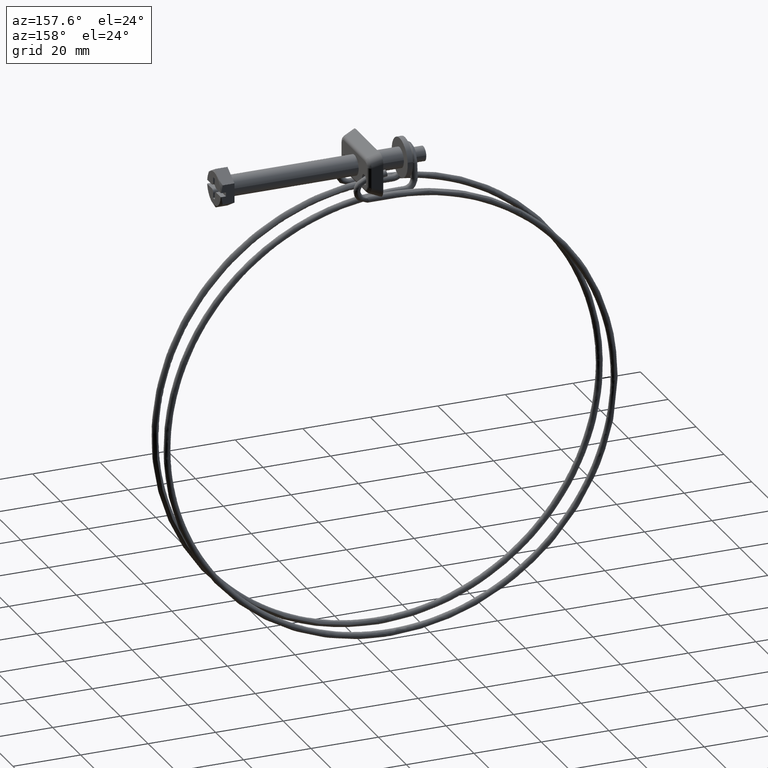
[diagram: clean part render]
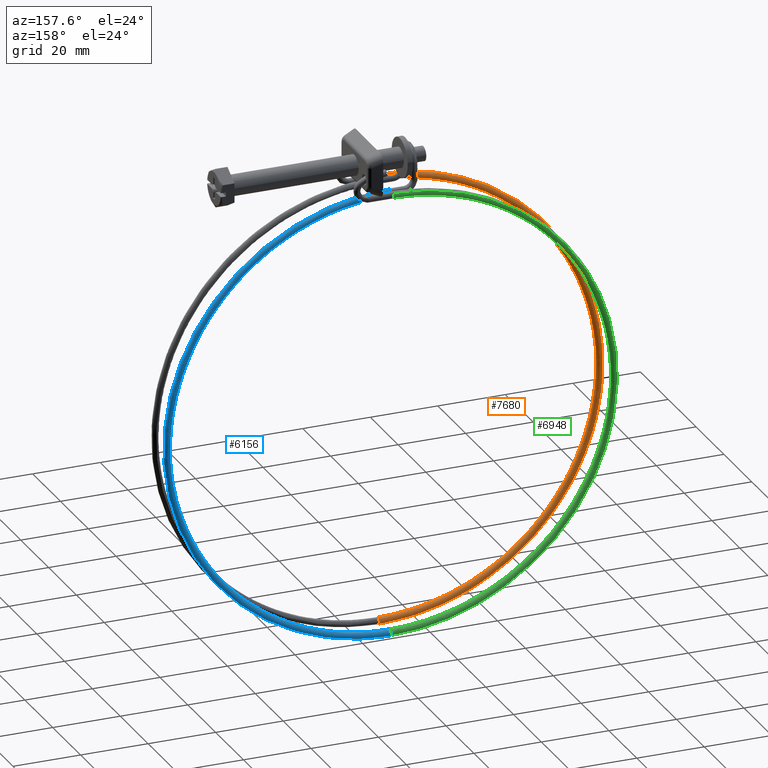
[diagram: same view with three faces highlighted in distinct colors, each labeled with its STEP entity id]
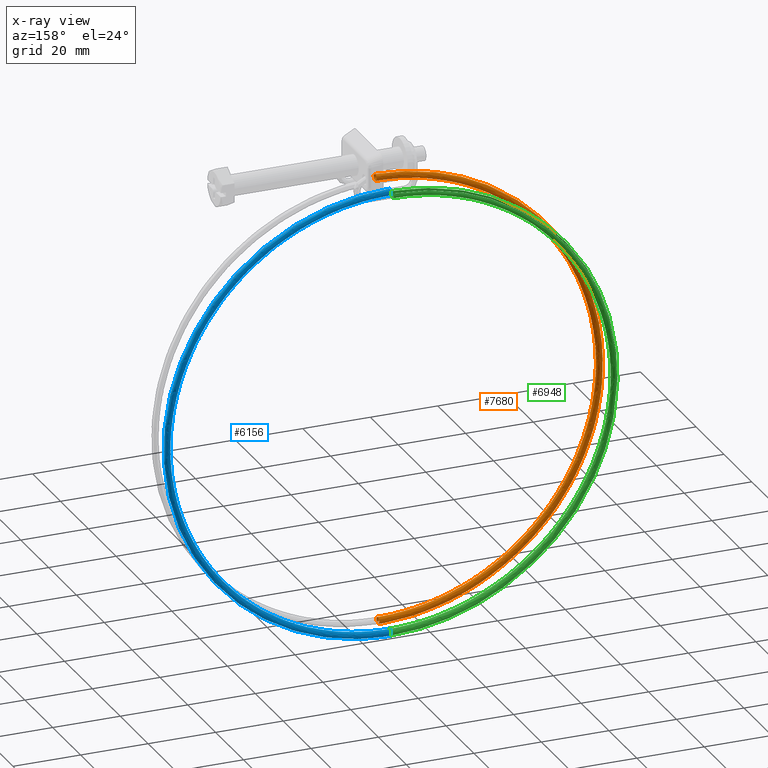
[diagram: x-ray of the same camera — body ghosted, the three highlighted faces saturated]
A machine part, auxiliary view with three faces highlighted in distinct colors.
The next image is the same camera in x-ray (body ghosted, the three faces saturated) — at least one of them is partly hidden behind the body in this view.
Their STEP definitions:

[orange] entity #7680 — the highlighted face is a freeform B-spline surface patch.
#5893=CARTESIAN_POINT('',(-46.300000000001297,-5.987361141063021,-6.904041933983246));
#5894=VERTEX_POINT('',#5893);
#5900=CARTESIAN_POINT('',(-46.300000000001297,-6.340604060138909,-6.850464702398905));
#5901=VERTEX_POINT('',#5900);
#5902=CARTESIAN_POINT('',(-46.300000000001297,-5.987361141063021,-6.904041933983246));
#5903=CARTESIAN_POINT('',(-46.300000000001297,-6.100711476459462,-6.865422116464831));
#5904=CARTESIAN_POINT('',(-46.300000000001297,-6.220833397246240,-6.846666851713740));
#5905=CARTESIAN_POINT('',(-46.300000000001297,-6.340604060138909,-6.850464702398905));
#5906=B_SPLINE_CURVE_WITH_KNOTS('',3,(#5902,#5903,#5904,#5905),.UNSPECIFIED.,.F.,.U.,(4,4),(0.942811831421911,1.0),.UNSPECIFIED.);
#5907=EDGE_CURVE('',#5894,#5901,#5906,.T.);
#5909=CARTESIAN_POINT('',(-46.300000000001297,-7.059608237888009,-7.187977989830042));
#5910=VERTEX_POINT('',#5909);
#5920=CARTESIAN_POINT('',(-46.300000000001297,-6.279704477932261,-8.849537297600755));
#5921=VERTEX_POINT('',#5920);
#5922=CARTESIAN_POINT('',(-46.300000000001297,-7.059608237887938,-7.187977989829961));
#5923=CARTESIAN_POINT('',(-46.300000000001297,-7.225673431966957,-7.376489701237635));
#5924=CARTESIAN_POINT('',(-46.300000000001297,-7.317343433839193,-7.629239919939925));
#5925=CARTESIAN_POINT('',(-46.300000000001297,-7.301718829967050,-8.142128781898130));
#5926=CARTESIAN_POINT('',(-46.300000000001297,-7.186073060171610,-8.398913735128859));
#5927=CARTESIAN_POINT('',(-46.300000000001297,-6.804730758501230,-8.757708560572009));
#5928=CARTESIAN_POINT('',(-46.300000000001297,-6.541382468727210,-8.857509034270210));
#5929=CARTESIAN_POINT('',(-46.300000000001297,-6.279704477932261,-8.849537297600755));
#5930=B_SPLINE_CURVE_WITH_KNOTS('',3,(#5922,#5923,#5924,#5925,#5926,#5927,#5928,#5929),.UNSPECIFIED.,.F.,.U.,(4,2,2,4),(0.129999999999966,0.250000000000000,0.375000000000000,0.500000000000000),.UNSPECIFIED.);
#5931=EDGE_CURVE('',#5910,#5921,#5930,.T.);
#5933=CARTESIAN_POINT('',(-46.300000000001290,-5.310662282386918,-7.880626537365123));
#5934=VERTEX_POINT('',#5933);
#5935=CARTESIAN_POINT('',(-46.300000000001297,-6.279704477932261,-8.849537297600755));
#5936=CARTESIAN_POINT('',(-46.300000000001297,-6.018021073740251,-8.841565739546454));
#5937=CARTESIAN_POINT('',(-46.300000000001297,-5.761228643913634,-8.725920216441475));
#5938=CARTESIAN_POINT('',(-46.300000000001290,-5.416377362093805,-8.359413350748357));
#5939=CARTESIAN_POINT('',(-46.300000000001290,-5.318623906230278,-8.121769434405914));
#5940=CARTESIAN_POINT('',(-46.300000000001290,-5.310662282386918,-7.880626537365123));
#5941=B_SPLINE_CURVE_WITH_KNOTS('',3,(#5935,#5936,#5937,#5938,#5939,#5940),.UNSPECIFIED.,.F.,.U.,(4,2,4),(0.500000000000000,0.625000000000000,0.740274508793305),.UNSPECIFIED.);
#5942=EDGE_CURVE('',#5921,#5934,#5941,.T.);
#6013=CARTESIAN_POINT('',(-46.300000000001290,-5.310662282386918,-7.880626537365123));
#6014=CARTESIAN_POINT('',(-46.300000000001290,-5.309989380878576,-7.860275451015038));
#6015=CARTESIAN_POINT('',(-46.300000000001290,-5.309955565105328,-7.839899310971513));
#6016=CARTESIAN_POINT('',(-46.300000000001290,-5.318524118460217,-7.557770409297187));
#6017=CARTESIAN_POINT('',(-46.300000000001290,-5.434142490514343,-7.300878589135087));
#6018=CARTESIAN_POINT('',(-46.300000000001297,-5.728212641389556,-7.024006607197404));
#6019=CARTESIAN_POINT('',(-46.300000000001297,-5.853026589946310,-6.950059000476596));
#6020=CARTESIAN_POINT('',(-46.300000000001297,-5.987361141063021,-6.904041933983246));
#6021=B_SPLINE_CURVE_WITH_KNOTS('',3,(#6013,#6014,#6015,#6016,#6017,#6018,#6019,#6020),.UNSPECIFIED.,.F.,.U.,(4,2,2,4),(0.740274508793305,0.750000000000000,0.875000000000000,0.942811831421911),.UNSPECIFIED.);
#6022=EDGE_CURVE('',#5934,#5894,#6021,.T.);
#6614=CARTESIAN_POINT('',(-46.299999999998718,-3.300325003128281,-139.875130902443090));
#6615=VERTEX_POINT('',#6614);
#6631=CARTESIAN_POINT('',(-46.299999999998832,-4.300002000000002,-138.850000999999910));
#6632=VERTEX_POINT('',#6631);
#6633=CARTESIAN_POINT('',(-46.299999999998832,-4.300002000000002,-138.850000999999910));
#6634=CARTESIAN_POINT('',(-46.299999999998811,-4.038201694071937,-138.850001024100610));
#6635=CARTESIAN_POINT('',(-46.299999999998811,-3.778013123046963,-138.957774154617110));
#6636=CARTESIAN_POINT('',(-46.299999999998761,-3.407770248270867,-139.328014468498910));
#6637=CARTESIAN_POINT('',(-46.299999999998739,-3.299995838206623,-139.588201773946710));
#6638=CARTESIAN_POINT('',(-46.299999999998718,-3.299994866560924,-139.858380212582090));
#6639=CARTESIAN_POINT('',(-46.299999999998718,-3.300105234542940,-139.866757587316410));
#6640=CARTESIAN_POINT('',(-46.299999999998718,-3.300325003128281,-139.875130902443090));
#6641=B_SPLINE_CURVE_WITH_KNOTS('',3,(#6633,#6634,#6635,#6636,#6637,#6638,#6639,#6640),.UNSPECIFIED.,.F.,.U.,(4,2,2,4),(0.500000000000000,0.625000000000000,0.750000000000000,0.754000689899060),.UNSPECIFIED.);
#6642=EDGE_CURVE('',#6632,#6615,#6641,.T.);
#6644=CARTESIAN_POINT('',(-46.299999999998761,-5.028949982883797,-140.534537745304790));
#6645=VERTEX_POINT('',#6644);
#6646=CARTESIAN_POINT('',(-46.299999999998818,-5.028949982883710,-140.534537745304790));
#6647=CARTESIAN_POINT('',(-46.299999999998818,-5.200678314366739,-140.351170097699310));
#6648=CARTESIAN_POINT('',(-46.299999999998811,-5.300001999999999,-140.101328412287190));
#6649=CARTESIAN_POINT('',(-46.299999999998832,-5.300002000000001,-139.588201612200810));
#6650=CARTESIAN_POINT('',(-46.299999999998832,-5.192228903609815,-139.328014341236700));
#6651=CARTESIAN_POINT('',(-46.299999999998832,-4.821988658763284,-138.957774096390100));
#6652=CARTESIAN_POINT('',(-46.299999999998839,-4.561801387799152,-138.850000999999910));
#6653=CARTESIAN_POINT('',(-46.299999999998832,-4.300002000000002,-138.850000999999910));
#6654=B_SPLINE_CURVE_WITH_KNOTS('',3,(#6646,#6647,#6648,#6649,#6650,#6651,#6652,#6653),.UNSPECIFIED.,.F.,.U.,(4,2,2,4),(0.129999999999962,0.250000000000000,0.375000000000000,0.500000000000000),.UNSPECIFIED.);
#6655=EDGE_CURVE('',#6645,#6632,#6654,.T.);
#6657=CARTESIAN_POINT('',(-46.300000000306440,-4.312567047721670,-140.849843094641610));
#6658=VERTEX_POINT('',#6657);
#6723=CARTESIAN_POINT('',(-46.299999999998718,-3.300325003128281,-139.875130902443090));
#6724=CARTESIAN_POINT('',(-46.300000000038743,-3.308607526460920,-140.128357981073290));
#6725=CARTESIAN_POINT('',(-46.300000000093974,-3.417584145978102,-140.377863779682290));
#6726=CARTESIAN_POINT('',(-46.300000000207497,-3.786538112270976,-140.742120829314810));
#6727=CARTESIAN_POINT('',(-46.300000000265143,-4.049080067939266,-140.849864315874410));
#6728=CARTESIAN_POINT('',(-46.300000000306440,-4.312567047721670,-140.849843094641610));
#6729=B_SPLINE_CURVE_WITH_KNOTS('',3,(#6723,#6724,#6725,#6726,#6727,#6728),.UNSPECIFIED.,.F.,.U.,(4,2,4),(0.754000689899063,0.875000000000000,1.0),.UNSPECIFIED.);
#6730=EDGE_CURVE('',#6615,#6658,#6729,.T.);
#7451=CARTESIAN_POINT('',(-45.252202371138893,-5.010231538632579,-140.554524812978200));
#7452=CARTESIAN_POINT('',(-45.255151725021982,-5.193250426231053,-140.369581834625790));
#7453=CARTESIAN_POINT('',(-45.263382723406529,-5.407578833021655,-139.848932364610700));
#7454=CARTESIAN_POINT('',(-45.275602872031193,-5.083829684594659,-139.066174413108510));
#7455=CARTESIAN_POINT('',(-45.280508573015567,-4.300038246994570,-138.741984492676610));
#7456=CARTESIAN_POINT('',(-45.275229265272742,-3.516059728204994,-139.066080283535710));
#7457=CARTESIAN_POINT('',(-45.262835694378147,-3.191958351908381,-139.850011035928500));
#7458=CARTESIAN_POINT('',(-45.250391775813391,-3.521918339958694,-140.647106807001390));
#7459=CARTESIAN_POINT('',(-45.247163360981553,-4.065177354485254,-140.860872432165510));
#7460=CARTESIAN_POINT('',(-45.247399899371672,-4.339961667100067,-140.850000999971000));
#7461=CARTESIAN_POINT('',(-45.601463405716707,-5.010251859975143,-140.553191663503900));
#7462=CARTESIAN_POINT('',(-45.603429655359022,-5.193270690371752,-140.368252437850200));
#7463=CARTESIAN_POINT('',(-45.608917025905548,-5.407598937525159,-139.847613440706990));
#7464=CARTESIAN_POINT('',(-45.617063848502973,-5.083849552094709,-139.064871037565610));
#7465=CARTESIAN_POINT('',(-45.620334338646813,-4.300058019352238,-138.740687358728310));
#7466=CARTESIAN_POINT('',(-45.616814775592722,-3.516079602954475,-139.064776432174910));
#7467=CARTESIAN_POINT('',(-45.608552337341827,-3.191978467026316,-139.848691415361800));
#7468=CARTESIAN_POINT('',(-45.600256333743822,-3.521938696420341,-140.645771353363900));
#7469=CARTESIAN_POINT('',(-45.598104042170561,-4.065197773559317,-140.859532870969100));
#7470=CARTESIAN_POINT('',(-45.598261735531047,-4.339982081585965,-140.848661739817200));
#7471=CARTESIAN_POINT('',(-54.682633188571302,-5.009175624602019,-140.623901930053990));
#7472=CARTESIAN_POINT('',(-54.659037642955148,-5.192197484467054,-140.438763665598490));
#7473=CARTESIAN_POINT('',(-54.593187661725302,-5.406534186218907,-139.917569192419310));
#7474=CARTESIAN_POINT('',(-54.495423512101567,-5.082797352959244,-139.134002096632090));
#7475=CARTESIAN_POINT('',(-54.456176715711813,-4.299010859239679,-138.809487344441810));
#7476=CARTESIAN_POINT('',(-54.498412456681123,-3.515027020163968,-139.133932691218400));
#7477=CARTESIAN_POINT('',(-54.597564026487362,-3.190913153976928,-139.918684065152690));
#7478=CARTESIAN_POINT('',(-54.697118389821533,-3.520860601360476,-140.716603797343710));
#7479=CARTESIAN_POINT('',(-54.722946490651701,-4.064116362339025,-140.930583192497810));
#7480=CARTESIAN_POINT('',(-54.721054126221347,-4.338900913312568,-140.919696100635210));
#7481=CARTESIAN_POINT('',(-63.756989904469727,-5.036666164135446,-138.818655068668110));
#7482=CARTESIAN_POINT('',(-63.707851870213908,-5.219610641642518,-138.638598341837990));
#7483=CARTESIAN_POINT('',(-63.570718417655371,-5.433731386233177,-138.131585325628210));
#7484=CARTESIAN_POINT('',(-63.367123289612053,-5.109673932200050,-137.369072729178500));
#7485=CARTESIAN_POINT('',(-63.285391319416497,-4.325758727273542,-137.053010177479110));
#7486=CARTESIAN_POINT('',(-63.373347806116143,-3.541913401651541,-137.368359637001790));
#7487=CARTESIAN_POINT('',(-63.579832254759367,-3.218124706281422,-138.131757721257000));
#7488=CARTESIAN_POINT('',(-63.787155527068052,-3.548398645500405,-138.908237413329000));
#7489=CARTESIAN_POINT('',(-63.840942886536283,-4.091739110615321,-139.116654461954510));
#7490=CARTESIAN_POINT('',(-63.837002012771563,-4.366517455534196,-139.106174907672600));
#7491=CARTESIAN_POINT('',(-79.887790249689132,-5.138412340619526,-132.137322762313490));
#7492=CARTESIAN_POINT('',(-79.793249368971829,-5.321070436617339,-131.976071754862600));
#7493=CARTESIAN_POINT('',(-79.529406551988870,-5.534391953357603,-131.521541367417710));
#7494=CARTESIAN_POINT('',(-79.137692414254730,-5.209147926002485,-130.836947086511290));
#7495=CARTESIAN_POINT('',(-78.980441263578257,-4.424756378769170,-130.552164346857210));
#7496=CARTESIAN_POINT('',(-79.149668295654934,-3.641423672578825,-130.833851796036900));
#7497=CARTESIAN_POINT('',(-79.546941445382217,-3.318838389792812,-131.518225787766990));
#7498=CARTESIAN_POINT('',(-79.945828479244994,-3.650320630324742,-132.215360358566300));
#7499=CARTESIAN_POINT('',(-80.049314596031138,-4.193974573706022,-132.403192334865110));
#7500=CARTESIAN_POINT('',(-80.041732410780583,-4.468729950807779,-132.394221000677310));
#7501=CARTESIAN_POINT('',(-94.687042206880960,-5.289014529519275,-122.247778949493100));
#7502=CARTESIAN_POINT('',(-94.550848855837970,-5.471248744010267,-122.114362827849400));
#7503=CARTESIAN_POINT('',(-94.170763149916596,-5.683387300636364,-121.737513488538500));
#7504=CARTESIAN_POINT('',(-93.606469051253853,-5.356386992011648,-121.168248345507290));
#7505=CARTESIAN_POINT('',(-93.379936772017203,-4.571290396807055,-120.929763755667000));
#7506=CARTESIAN_POINT('',(-93.623721222066436,-3.788716433392357,-121.161627096298800));
#7507=CARTESIAN_POINT('',(-94.196023501528089,-3.467912356148361,-121.729035255724100));
#7508=CARTESIAN_POINT('',(-94.770650704372486,-3.801183038215469,-122.308728832305110));
#7509=CARTESIAN_POINT('',(-94.919730350267244,-4.345300969766967,-122.466092251300490));
#7510=CARTESIAN_POINT('',(-94.908807633976423,-4.620022351542072,-122.459353276821800));
#7511=CARTESIAN_POINT('',(-104.576515559903900,-5.514383602051732,-107.448543074470610));
#7512=CARTESIAN_POINT('',(-104.412492514994500,-5.695983593862392,-107.356774242369100));
#7513=CARTESIAN_POINT('',(-103.954740250669400,-5.906352174407490,-107.096153333630800));
#7514=CARTESIAN_POINT('',(-103.275138525942590,-5.576724071444121,-106.699446686109600));
#7515=CARTESIAN_POINT('',(-103.002316733016200,-4.790572564931356,-106.530234607083400));
#7516=CARTESIAN_POINT('',(-103.295915998170200,-4.009133852422949,-106.687549803534100));
#7517=CARTESIAN_POINT('',(-103.985162292230800,-3.690994861855661,-107.079950603591000));
#7518=CARTESIAN_POINT('',(-104.677208583546600,-4.026941457252975,-107.483925869859210));
#7519=CARTESIAN_POINT('',(-104.856751103659700,-4.571753620147919,-107.595701430605300));
#7520=CARTESIAN_POINT('',(-104.843596443950500,-4.846424137218420,-107.592302571739690));
#7521=CARTESIAN_POINT('',(-111.257782684500700,-5.760018688355494,-91.318505618317914));
#7522=CARTESIAN_POINT('',(-111.074958662756300,-5.940927467304522,-91.272126431439418));
#7523=CARTESIAN_POINT('',(-110.564737004908590,-6.149367024664599,-91.138178045293387));
#7524=CARTESIAN_POINT('',(-109.807236614618300,-5.816874998203254,-90.929535709970821));
#7525=CARTESIAN_POINT('',(-109.503142897714890,-5.029573787773433,-90.835820854089818));
#7526=CARTESIAN_POINT('',(-109.830395683900090,-4.249372337945368,-90.911889134847257));
#7527=CARTESIAN_POINT('',(-110.598646142494300,-3.934137914264944,-91.113556707509943));
#7528=CARTESIAN_POINT('',(-111.370017544980900,-4.273000876083368,-91.326023910732246));
#7529=CARTESIAN_POINT('',(-111.570139946175700,-4.818569652777088,-91.388115164730110));
#7530=CARTESIAN_POINT('',(-111.555477446807500,-5.093184734530484,-91.388356558528869));
#7531=CARTESIAN_POINT('',(-114.729472738080800,-6.025869368096949,-73.860977516091310));
#7532=CARTESIAN_POINT('',(-114.536880152141290,-6.206030084850589,-73.863721080269713));
#7533=CARTESIAN_POINT('',(-113.999396578674090,-6.412381965071646,-73.866863494669118));
#7534=CARTESIAN_POINT('',(-113.201421796164300,-6.076790469510829,-73.861752964377828));
#7535=CARTESIAN_POINT('',(-112.881079891693800,-5.288244996932343,-73.849744657695325));
#7536=CARTESIAN_POINT('',(-113.225818289441510,-4.509382569366179,-73.837883808673993));
#7537=CARTESIAN_POINT('',(-114.035117532720410,-4.197291600899854,-73.833131154322473));
#7538=CARTESIAN_POINT('',(-114.847704476976700,-4.539310787910502,-73.838339568346541));
#7539=CARTESIAN_POINT('',(-115.058519720890400,-5.085698406687752,-73.846660191878570));
#7540=CARTESIAN_POINT('',(-115.043073782018200,-5.360253493798234,-73.850841233808239));
#7541=CARTESIAN_POINT('',(-111.257782684645210,-6.291720047849645,-56.403449414162701));
#7542=CARTESIAN_POINT('',(-111.074958662906500,-6.471132702403176,-56.455315729459173));
#7543=CARTESIAN_POINT('',(-110.564737005023600,-6.675396905476107,-56.595548944389542));
#7544=CARTESIAN_POINT('',(-109.807236614887700,-6.336705940824894,-56.793970218892618));
#7545=CARTESIAN_POINT('',(-109.503142897943500,-5.546916206084607,-56.863668461746343));
#7546=CARTESIAN_POINT('',(-109.830395684170800,-4.769392800784982,-56.763878482788392));
#7547=CARTESIAN_POINT('',(-110.598646142598990,-4.460445287530791,-56.552705601604082));
#7548=CARTESIAN_POINT('',(-111.370017545148900,-4.805620699734621,-56.350655226237357));
#7549=CARTESIAN_POINT('',(-111.570139946315290,-5.352827160596672,-56.305205219467901));
#7550=CARTESIAN_POINT('',(-111.555477446951900,-5.627322253066031,-56.313325909426020));
#7551=CARTESIAN_POINT('',(-104.576515559842310,-6.537355134143393,-40.273411957747683));
#7552=CARTESIAN_POINT('',(-104.412492514938900,-6.716076575842074,-40.370667918201939));
#7553=CARTESIAN_POINT('',(-103.954740250590600,-6.918411755729286,-40.637573655710277));
#7554=CARTESIAN_POINT('',(-103.275138525715900,-6.576856867582300,-41.024059242666240));
#7555=CARTESIAN_POINT('',(-103.002316732867600,-5.785917428928415,-41.169254708294098));
#7556=CARTESIAN_POINT('',(-103.295915997950500,-5.009631286309215,-40.988217813855357));
#7557=CARTESIAN_POINT('',(-103.985162292157000,-4.703588339941887,-40.586311705072553));
#7558=CARTESIAN_POINT('',(-104.677208583496590,-5.051680118567521,-40.192753266841507));
#7559=CARTESIAN_POINT('',(-104.856751103563600,-5.599643193225263,-40.097618953200673));
#7560=CARTESIAN_POINT('',(-104.843596443888000,-5.874082850374114,-40.109379895914799));
#7561=CARTESIAN_POINT('',(-94.687042206898255,-6.762724206683997,-25.474176082973312));
#7562=CARTESIAN_POINT('',(-94.550848855855165,-6.940811425698382,-25.613079333021439));
#7563=CARTESIAN_POINT('',(-94.170763149969773,-7.141376629511030,-25.996213501109871));
#7564=CARTESIAN_POINT('',(-93.606469051319920,-6.797193947014660,-26.555257583404831));
#7565=CARTESIAN_POINT('',(-93.379936772122264,-6.005199597058665,-26.769725560078690));
#7566=CARTESIAN_POINT('',(-93.623721222132616,-5.230048705338526,-26.514140521474530));
#7567=CARTESIAN_POINT('',(-94.196023501599129,-4.926670845647909,-25.937227053257729));
#7568=CARTESIAN_POINT('',(-94.770650704311961,-5.277438537606961,-25.367950304764001));
#7569=CARTESIAN_POINT('',(-94.919730350346327,-5.826095843611607,-25.227228132858770));
#7570=CARTESIAN_POINT('',(-94.908807634004745,-6.100484636058175,-25.242329191168761));
#7571=CARTESIAN_POINT('',(-79.887790249724631,-6.913326395576974,-15.584632269857099));
#7572=CARTESIAN_POINT('',(-79.793249369001330,-7.090989733078773,-15.751370405696040));
#7573=CARTESIAN_POINT('',(-79.529406551969899,-7.290371976778971,-16.212185621981860));
#7574=CARTESIAN_POINT('',(-79.137692414357943,-6.944433013018116,-16.886558842122572));
#7575=CARTESIAN_POINT('',(-78.980441263524980,-6.151733615085167,-17.147324968722749));
#7576=CARTESIAN_POINT('',(-79.149668295750715,-5.377341466152704,-16.841915820988760));
#7577=CARTESIAN_POINT('',(-79.546941445322503,-5.075744812008072,-16.148036521118840));
#7578=CARTESIAN_POINT('',(-79.945828479424236,-5.428300945487917,-15.461318777914830));
#7579=CARTESIAN_POINT('',(-80.049314595977691,-5.977422239662255,-15.290128048916060));
#7580=CARTESIAN_POINT('',(-80.041732410794992,-6.251777036785225,-15.307461466825300));
#7581=CARTESIAN_POINT('',(-63.756989904440879,-7.015072572066004,-8.903299963862819));
#7582=CARTESIAN_POINT('',(-63.707851870177493,-7.192449528067119,-9.088843819083385));
#7583=CARTESIAN_POINT('',(-63.570718417735272,-7.391032543920937,-9.602141664063261));
#7584=CARTESIAN_POINT('',(-63.367123289524208,-7.043907006824502,-10.354433199857990));
#7585=CARTESIAN_POINT('',(-63.285391319458327,-6.250731266599909,-10.646479138251809));
#7586=CARTESIAN_POINT('',(-63.373347806027361,-5.476851737079953,-10.307407980985159));
#7587=CARTESIAN_POINT('',(-63.579832254887592,-5.176458495515416,-9.534504587670403));
#7588=CARTESIAN_POINT('',(-63.787155526854349,-5.530222930326548,-8.768441723918423));
#7589=CARTESIAN_POINT('',(-63.840942886636697,-6.079657702768103,-8.576665922245178));
#7590=CARTESIAN_POINT('',(-63.837002012764408,-6.353989532069828,-8.595507560432779));
#7591=CARTESIAN_POINT('',(-54.682633156393237,-7.042563114199715,-7.098087682771798));
#7592=CARTESIAN_POINT('',(-54.659037610918112,-7.219862688573196,-7.288712931356096));
#7593=CARTESIAN_POINT('',(-54.593187629970402,-7.418229749315008,-7.816191828830775));
#7594=CARTESIAN_POINT('',(-54.495423481047197,-7.070783594517956,-8.589537261031410));
#7595=CARTESIAN_POINT('',(-54.456176684780893,-6.277479144310548,-8.890035153814361));
#7596=CARTESIAN_POINT('',(-54.498412425621787,-5.503738127020755,-8.541868361203751));
#7597=CARTESIAN_POINT('',(-54.597563994683831,-5.203670053222701,-7.747612284965308));
#7598=CARTESIAN_POINT('',(-54.697118357722530,-5.557760976696422,-6.960109997677890));
#7599=CARTESIAN_POINT('',(-54.722946458141678,-6.107280452416251,-6.762772013676475));
#7600=CARTESIAN_POINT('',(-54.721054093808547,-6.381606075707876,-6.782021179809626));
#7601=CARTESIAN_POINT('',(-45.601463408241862,-7.041486876019104,-7.168760657539671));
#7602=CARTESIAN_POINT('',(-45.603429657873150,-7.218789479069891,-7.359187022891456));
#7603=CARTESIAN_POINT('',(-45.608917028397293,-7.417164992192816,-7.886110880540718));
#7604=CARTESIAN_POINT('',(-45.617063850940177,-7.069731386266251,-8.658632270250033));
#7605=CARTESIAN_POINT('',(-45.620334341074020,-6.276431973748197,-8.958799355196087));
#7606=CARTESIAN_POINT('',(-45.616814778030331,-5.502685535112851,-8.610988563845773));
#7607=CARTESIAN_POINT('',(-45.608552339837232,-5.202604734346613,-7.817568224510322));
#7608=CARTESIAN_POINT('',(-45.600256336263222,-5.556682879222467,-7.030905066087022));
#7609=CARTESIAN_POINT('',(-45.598104044721431,-6.106199039705792,-6.833784782769794));
#7610=CARTESIAN_POINT('',(-45.598261738074562,-6.380524905897613,-6.853017998477333));
#7611=CARTESIAN_POINT('',(-45.252202374854051,-7.041507197265370,-7.167426229036845));
#7612=CARTESIAN_POINT('',(-45.255151728720897,-7.218809743087152,-7.357856352422993));
#7613=CARTESIAN_POINT('',(-45.263382727072383,-7.417185096496816,-7.884790697905345));
#7614=CARTESIAN_POINT('',(-45.275602875616968,-7.069751253453633,-8.657327658274264));
#7615=CARTESIAN_POINT('',(-45.280508576586541,-6.276451745747433,-8.957500993921730));
#7616=CARTESIAN_POINT('',(-45.275229268859100,-5.502705409549620,-8.609683475826827));
#7617=CARTESIAN_POINT('',(-45.262835698049379,-5.202624849264702,-7.816247344860901));
#7618=CARTESIAN_POINT('',(-45.250391779520292,-5.556703235601298,-7.029568330546800));
#7619=CARTESIAN_POINT('',(-45.247163364734419,-6.106219458728724,-6.832443933605014));
#7620=CARTESIAN_POINT('',(-45.247399903113809,-6.380545320330781,-6.851677450707686));
#7621=B_SPLINE_SURFACE_WITH_KNOTS('',3,3,((#7451,#7461,#7471,#7481,#7491,#7501,#7511,#7521,#7531,#7541,#7551,#7561,#7571,#7581,#7591,#7601,#7611),(#7452,#7462,#7472,#7482,#7492,#7502,#7512,#7522,#7532,#7542,#7552,#7562,#7572,#7582,#7592,#7602,#7612),(#7453,#7463,#7473,#7483,#7493,#7503,#7513,#7523,#7533,#7543,#7553,#7563,#7573,#7583,#7593,#7603,#7613),(#7454,#7464,#7474,#7484,#7494,#7504,#7514,#7524,#7534,#7544,#7554,#7564,#7574,#7584,#7594,#7604,#7614),(#7455,#7465,#7475,#7485,#7495,#7505,#7515,#7525,#7535,#7545,#7555,#7565,#7575,#7585,#7595,#7605,#7615),(#7456,#7466,#7476,#7486,#7496,#7506,#7516,#7526,#7536,#7546,#7556,#7566,#7576,#7586,#7596,#7606,#7616),(#7457,#7467,#7477,#7487,#7497,#7507,#7517,#7527,#7537,#7547,#7557,#7567,#7577,#7587,#7597,#7607,#7617),(#7458,#7468,#7478,#7488,#7498,#7508,#7518,#7528,#7538,#7548,#7558,#7568,#7578,#7588,#7598,#7608,#7618),(#7459,#7469,#7479,#7489,#7499,#7509,#7519,#7529,#7539,#7549,#7559,#7569,#7579,#7589,#7599,#7609,#7619),(#7460,#7470,#7480,#7490,#7500,#7510,#7520,#7530,#7540,#7550,#7560,#7570,#7580,#7590,#7600,#7610,#7620)),.UNSPECIFIED.,.F.,.F.,.U.,(4,1,1,1,1,1,1,4),(4,1,2,1,2,1,2,1,2,1,4),(0.0,0.781846738510997,1.567717140712078,2.353587542913159,3.139457945114240,3.925328347315321,4.711198749516402,5.537052906867230),(0.0,1.052608384004276,27.367818572291270,53.683028760578722,79.998238948865776,106.313449137152800,132.628659325440310,158.943869513727290,185.259079702014790,211.574289890301800,212.626898274307000),.UNSPECIFIED.);
#7622=ORIENTED_EDGE('',*,*,#5931,.F.);
#7623=CARTESIAN_POINT('',(-46.299999999998697,-5.028949982883884,-140.534537745304700));
#7624=CARTESIAN_POINT('',(-55.028993040861216,-5.028950491541337,-140.534537750803310));
#7625=CARTESIAN_POINT('',(-63.751683702941840,-5.055376544610757,-138.799193512118110));
#7626=CARTESIAN_POINT('',(-79.878066707455048,-5.157099158497243,-132.119408483070600));
#7627=CARTESIAN_POINT('',(-87.273987257274158,-5.232355181676231,-127.177596256937510));
#7628=CARTESIAN_POINT('',(-99.616540377540545,-5.420313262117619,-114.835015547545590));
#7629=CARTESIAN_POINT('',(-104.558317954789400,-5.532941370217672,-107.439103059771200));
#7630=CARTESIAN_POINT('',(-111.238040346405100,-5.778519666618634,-91.312794807166554));
#7631=CARTESIAN_POINT('',(-112.973357941565790,-5.911373248182026,-82.588742885164137));
#7632=CARTESIAN_POINT('',(-112.973357941805500,-6.177184972591083,-65.133772849974136));
#7633=CARTESIAN_POINT('',(-111.238040346465890,-6.310038554159889,-56.409720928123463));
#7634=CARTESIAN_POINT('',(-104.558317954730300,-6.555616850550083,-40.283412675212013));
#7635=CARTESIAN_POINT('',(-99.616540377515875,-6.668244958658005,-32.887500187677837));
#7636=CARTESIAN_POINT('',(-87.273987257303077,-6.856203039094418,-20.544919478112909));
#7637=CARTESIAN_POINT('',(-79.878066707490049,-6.931459062273788,-15.603107251945181));
#7638=CARTESIAN_POINT('',(-63.751683702911137,-7.033181676164523,-8.923322223137509));
#7639=CARTESIAN_POINT('',(-55.028993009933451,-7.059607731810364,-7.188011221954803));
#7640=CARTESIAN_POINT('',(-46.300000000001297,-7.059608237888081,-7.187977989830123));
#7641=B_SPLINE_CURVE_WITH_KNOTS('',3,(#7623,#7624,#7625,#7626,#7627,#7628,#7629,#7630,#7631,#7632,#7633,#7634,#7635,#7636,#7637,#7638,#7639,#7640),.UNSPECIFIED.,.F.,.U.,(4,2,2,2,2,2,2,2,4),(0.473921921303544,0.533162611073015,0.592403300842487,0.651643990611958,0.710884680381429,0.770125370150901,0.829366059920372,0.888606749689844,0.947847439459315),.UNSPECIFIED.);
#7642=EDGE_CURVE('',#6645,#5910,#7641,.T.);
#7643=ORIENTED_EDGE('',*,*,#7642,.F.);
#7644=ORIENTED_EDGE('',*,*,#6655,.T.);
#7645=ORIENTED_EDGE('',*,*,#6642,.T.);
#7646=ORIENTED_EDGE('',*,*,#6730,.T.);
#7647=CARTESIAN_POINT('',(-46.300000000306440,-4.312567047721670,-140.849843094641610));
#7648=CARTESIAN_POINT('',(-55.070762017212047,-4.312550252886102,-140.848451413744100));
#7649=CARTESIAN_POINT('',(-63.837708953520043,-4.338966103922497,-139.106725467763000));
#7650=CARTESIAN_POINT('',(-71.940207626346876,-4.389765924688781,-135.750632712686300));
#7651=CARTESIAN_POINT('',(-80.043318764675462,-4.440569585398639,-132.394286271541200));
#7652=CARTESIAN_POINT('',(-87.475220769737206,-4.515717309801800,-127.428044854332700));
#7653=CARTESIAN_POINT('',(-93.676697432661200,-4.609577469257501,-121.226525814825390));
#7654=CARTESIAN_POINT('',(-99.878459025951912,-4.703441941171526,-115.024721843004400));
#7655=CARTESIAN_POINT('',(-104.844507829859500,-4.815921593992954,-107.592795405429400));
#7656=CARTESIAN_POINT('',(-108.200726556957900,-4.938553716952226,-99.490104995511430));
#7657=CARTESIAN_POINT('',(-111.557062989452210,-5.061190140722548,-91.387130417468455));
#7658=CARTESIAN_POINT('',(-113.300527606065800,-5.193861714634611,-82.620461248105272));
#7659=CARTESIAN_POINT('',(-113.300520250859290,-5.326597779362466,-73.850154083017131));
#7660=CARTESIAN_POINT('',(-113.300512658372000,-5.463615944910750,-64.796914471618734));
#7661=CARTESIAN_POINT('',(-111.442481595127110,-5.600574477735468,-55.747552568895053));
#7662=CARTESIAN_POINT('',(-107.870874217518510,-5.726488282049539,-47.428196197302981));
#7663=CARTESIAN_POINT('',(-104.243717186410390,-5.854360439413360,-38.979447841956528));
#7664=CARTESIAN_POINT('',(-98.859341507293209,-5.970724800153122,-31.288693369788628));
#7665=CARTESIAN_POINT('',(-92.152545090732289,-6.065960312222456,-24.997762710674071));
#7666=CARTESIAN_POINT('',(-86.065621639271896,-6.152393720338924,-19.288268791055280));
#7667=CARTESIAN_POINT('',(-78.905408135333019,-6.221418166937314,-14.724959934289830));
#7668=CARTESIAN_POINT('',(-71.153979293424030,-6.268278316957640,-11.630010244390069));
#7669=CARTESIAN_POINT('',(-63.272073467793007,-6.315927246847603,-8.482964391505979));
#7670=CARTESIAN_POINT('',(-54.787490744593832,-6.340547251792322,-6.851843172402917));
#7671=CARTESIAN_POINT('',(-46.300000000001297,-6.340604060138909,-6.850464702398905));
#7672=B_SPLINE_CURVE_WITH_KNOTS('',3,(#7647,#7648,#7649,#7650,#7651,#7652,#7653,#7654,#7655,#7656,#7657,#7658,#7659,#7660,#7661,#7662,#7663,#7664,#7665,#7666,#7667,#7668,#7669,#7670,#7671),.UNSPECIFIED.,.F.,.U.,(4,3,3,3,3,3,3,3,4),(0.0,26.312286381997819,52.626561702017327,78.942046046358712,105.258453296730910,132.423834857955400,160.011722975294590,185.049811613715800,210.509357295778100),.UNSPECIFIED.);
#7673=EDGE_CURVE('',#6658,#5901,#7672,.T.);
#7674=ORIENTED_EDGE('',*,*,#7673,.T.);
#7675=ORIENTED_EDGE('',*,*,#5907,.F.);
#7676=ORIENTED_EDGE('',*,*,#6022,.F.);
#7677=ORIENTED_EDGE('',*,*,#5942,.F.);
#7678=EDGE_LOOP('',(#7622,#7643,#7644,#7645,#7646,#7674,#7675,#7676,#7677));
#7679=FACE_OUTER_BOUND('',#7678,.T.);
#7680=ADVANCED_FACE('',(#7679),#7621,.T.);

[blue] entity #6156 — the highlighted face is a freeform B-spline surface patch.
#5472=CARTESIAN_POINT('',(-46.299999999998690,5.153540374952200,-8.371030982327213));
#5473=VERTEX_POINT('',#5472);
#5474=CARTESIAN_POINT('',(-46.299999999998697,4.300002000000000,-8.850000999999999));
#5475=VERTEX_POINT('',#5474);
#5476=CARTESIAN_POINT('',(-46.299999999998704,5.153540374952200,-8.371030982327214));
#5477=CARTESIAN_POINT('',(-46.299999999998704,4.861160130046662,-8.850000999999999));
#5478=CARTESIAN_POINT('',(-46.299999999998697,4.300002000000000,-8.850000999999999));
#5486=(BOUNDED_CURVE()B_SPLINE_CURVE(2,(#5476,#5477,#5478),.UNSPECIFIED.,.F.,.U.)B_SPLINE_CURVE_WITH_KNOTS((3,3),(0.339018961637437,0.500000000000000),.UNSPECIFIED.)CURVE()GEOMETRIC_REPRESENTATION_ITEM()RATIONAL_B_SPLINE_CURVE((0.865687465728266,0.811398982024228,1.0))REPRESENTATION_ITEM(''));
#5487=EDGE_CURVE('',#5473,#5475,#5486,.T.);
#5489=CARTESIAN_POINT('',(-46.299999999998690,3.300317810718986,-7.824870904489632));
#5490=VERTEX_POINT('',#5489);
#5491=CARTESIAN_POINT('',(-46.299999999998697,4.300002000000000,-8.850000999999999));
#5492=CARTESIAN_POINT('',(-46.299999999998697,3.300001999999999,-8.850000999999999));
#5493=CARTESIAN_POINT('',(-46.299999999998697,3.300002000000000,-7.850001000000001));
#5494=CARTESIAN_POINT('',(-46.299999999998690,3.300001999999999,-7.837433967809599));
#5495=CARTESIAN_POINT('',(-46.299999999998690,3.300317810718987,-7.824870904489632));
#5503=(BOUNDED_CURVE()B_SPLINE_CURVE(2,(#5491,#5492,#5493,#5494,#5495),.UNSPECIFIED.,.F.,.U.)B_SPLINE_CURVE_WITH_KNOTS((3,2,3),(0.500000000000000,0.750000000000000,0.754420108253643),.UNSPECIFIED.)CURVE()GEOMETRIC_REPRESENTATION_ITEM()RATIONAL_B_SPLINE_CURVE((1.0,0.707106781186548,1.0,0.994821521064346,0.989826157628570))REPRESENTATION_ITEM(''));
#5504=EDGE_CURVE('',#5475,#5490,#5503,.T.);
#5506=CARTESIAN_POINT('',(-46.299999999965223,4.325132096602051,-6.850316810745772));
#5507=VERTEX_POINT('',#5506);
#5521=CARTESIAN_POINT('',(-46.299999999990817,5.006368250353953,-7.142154462704824));
#5522=VERTEX_POINT('',#5521);
#5523=CARTESIAN_POINT('',(-46.299999999965216,4.325132096602051,-6.850316810745772));
#5524=CARTESIAN_POINT('',(-46.299999999978922,4.723966197604517,-6.860342716520959));
#5525=CARTESIAN_POINT('',(-46.299999999990817,5.006368250353953,-7.142154462704824));
#5533=(BOUNDED_CURVE()B_SPLINE_CURVE(2,(#5523,#5524,#5525),.UNSPECIFIED.,.F.,.U.)B_SPLINE_CURVE_WITH_KNOTS((3,3),(0.004420108433006,0.124842133676771),.UNSPECIFIED.)CURVE()GEOMETRIC_REPRESENTATION_ITEM()RATIONAL_B_SPLINE_CURVE((0.989826157223159,0.853731802435784,0.853553624174688))REPRESENTATION_ITEM(''));
#5534=EDGE_CURVE('',#5507,#5522,#5533,.T.);
#5627=CARTESIAN_POINT('',(-46.299999999990817,5.006368250353953,-7.142154462704824));
#5628=CARTESIAN_POINT('',(-46.299999999998697,5.300002000000000,-7.435174428106903));
#5629=CARTESIAN_POINT('',(-46.299999999998697,5.300002000000000,-7.850001000000001));
#5630=CARTESIAN_POINT('',(-46.299999999998704,5.300002000000000,-8.131101204718034));
#5631=CARTESIAN_POINT('',(-46.299999999998690,5.153540374952200,-8.371030982327213));
#5639=(BOUNDED_CURVE()B_SPLINE_CURVE(2,(#5627,#5628,#5629,#5630,#5631),.UNSPECIFIED.,.F.,.U.)B_SPLINE_CURVE_WITH_KNOTS((3,2,3),(0.124842133676771,0.250000000000000,0.339018961637437),.UNSPECIFIED.)CURVE()GEOMETRIC_REPRESENTATION_ITEM()RATIONAL_B_SPLINE_CURVE((0.853553624174688,0.853368438691062,1.0,0.895707799162320,0.865687465728266))REPRESENTATION_ITEM(''));
#5640=EDGE_CURVE('',#5522,#5473,#5639,.T.);
#6028=CARTESIAN_POINT('',(-55.663047467917373,3.300848523476726,-139.229198223385910));
#6029=CARTESIAN_POINT('',(19.269323919923139,3.300848523476725,-149.960369298961670));
#6030=CARTESIAN_POINT('',(19.744938342626138,3.300848523476725,-74.264979047114409));
#6031=CARTESIAN_POINT('',(20.226283273767553,3.300848523476726,2.342437947155992));
#6032=CARTESIAN_POINT('',(-55.616615111351273,3.300848523476726,-8.464170957644267));
#6033=CARTESIAN_POINT('',(-55.661557574286824,3.300584332813777,-139.218794767689640));
#6034=CARTESIAN_POINT('',(19.258890210342685,3.300584332813777,-149.948258247155480));
#6035=CARTESIAN_POINT('',(19.734428950966599,3.300584332813776,-74.264913013790192));
#6036=CARTESIAN_POINT('',(20.215697288162570,3.300584332813777,2.330313835869259));
#6037=CARTESIAN_POINT('',(-55.615132606263053,3.300584332813778,-8.474575468786894));
#6038=CARTESIAN_POINT('',(-55.518334273784760,3.275187715274567,-138.218711788019480));
#6039=CARTESIAN_POINT('',(18.255898928318505,3.275187715274568,-148.784024253089340));
#6040=CARTESIAN_POINT('',(18.724162359528542,3.275187715274567,-74.258565238052952));
#6041=CARTESIAN_POINT('',(19.198067729703954,3.275187715274568,1.164824435467836));
#6042=CARTESIAN_POINT('',(-55.472619565468626,3.275187715274567,-9.474759908396019));
#6043=CARTESIAN_POINT('',(-55.514771705056468,4.274871904557867,-138.193835498082140));
#6044=CARTESIAN_POINT('',(18.230950296611447,4.274871904557867,-148.755064833741050));
#6045=CARTESIAN_POINT('',(18.699032760131772,4.274871904557867,-74.258407342045402));
#6046=CARTESIAN_POINT('',(19.172754982202360,4.274871904557867,1.135833788858821));
#6047=CARTESIAN_POINT('',(-55.469074663900741,4.274871904557869,-9.499638722070817));
#6048=CARTESIAN_POINT('',(-55.511209136328176,5.274556093841167,-138.168959208144770));
#6049=CARTESIAN_POINT('',(18.206001664904417,5.274556093841166,-148.726105414392830));
#6050=CARTESIAN_POINT('',(18.673903160734998,5.274556093841167,-74.258249446037851));
#6051=CARTESIAN_POINT('',(19.147442234700758,5.274556093841167,1.106843142249819));
#6052=CARTESIAN_POINT('',(-55.465529762332849,5.274556093841166,-9.524517535745602));
#6053=CARTESIAN_POINT('',(-55.652929395168528,5.299686189284504,-139.158546923578370));
#6054=CARTESIAN_POINT('',(19.198467161823004,5.299686189284503,-149.878121478897870));
#6055=CARTESIAN_POINT('',(19.673567617108262,5.299686189284504,-74.264530605719230));
#6056=CARTESIAN_POINT('',(20.154392388221947,5.299686189284505,2.260101438362163));
#6057=CARTESIAN_POINT('',(-55.606547215210334,5.299686189284504,-8.534829425133513));
#6058=CARTESIAN_POINT('',(-55.794649654008900,5.324816284727842,-140.148134639012080));
#6059=CARTESIAN_POINT('',(20.190932658741602,5.324816284727840,-151.030137543402930));
#6060=CARTESIAN_POINT('',(20.673232073481529,5.324816284727842,-74.270811765400595));
#6061=CARTESIAN_POINT('',(21.161342541743132,5.324816284727840,3.413359734474520));
#6062=CARTESIAN_POINT('',(-55.747564668087819,5.324816284727842,-7.545141314521407));
#6063=CARTESIAN_POINT('',(-55.798282235430257,4.305485995214260,-140.173499805427380));
#6064=CARTESIAN_POINT('',(20.216371588609189,4.305485995214259,-151.059666082140300));
#6065=CARTESIAN_POINT('',(20.698855527471363,4.305485995214259,-74.270972764428862));
#6066=CARTESIAN_POINT('',(21.187152743120528,4.305485995214259,3.442920114160354));
#6067=CARTESIAN_POINT('',(-55.751179235148356,4.305485995214262,-7.519773574771453));
#6068=CARTESIAN_POINT('',(-55.798351117485105,4.286157160771637,-140.173980787016320));
#6069=CARTESIAN_POINT('',(20.216853968921889,4.286157160771635,-151.060226010793850));
#6070=CARTESIAN_POINT('',(20.699341406783613,4.286157160771636,-74.270975817338837));
#6071=CARTESIAN_POINT('',(21.187642163590510,4.286157160771635,3.443480646591193));
#6072=CARTESIAN_POINT('',(-55.751247775609656,4.286157160771634,-7.519292544386246));
#6080=(BOUNDED_SURFACE()B_SPLINE_SURFACE(2,2,((#6028,#6033,#6038,#6043,#6048,#6053,#6058,#6063,#6068),(#6029,#6034,#6039,#6044,#6049,#6054,#6059,#6064,#6069),(#6030,#6035,#6040,#6045,#6050,#6055,#6060,#6065,#6070),(#6031,#6036,#6041,#6046,#6051,#6056,#6061,#6066,#6071),(#6032,#6037,#6042,#6047,#6052,#6057,#6062,#6067,#6072)),.UNSPECIFIED.,.F.,.F.,.U.)B_SPLINE_SURFACE_WITH_KNOTS((3,2,3),(3,1,2,2,1,3),(0.0,121.842531703483600,244.641604906527590),(0.0,0.024960337529253,1.681814587021703,3.338668836514152,4.995523086006602,5.041949225266481),.UNSPECIFIED.)GEOMETRIC_REPRESENTATION_ITEM()RATIONAL_B_SPLINE_SURFACE(((0.999185389109357,0.994815144111754,0.700350304555242,0.990444899114151,0.700350304555242,0.990444899114151,0.700350304555242,0.998573539306646,1.006702179499140),(0.660066556690338,0.657179552337690,0.462654697560047,0.654292547985041,0.462654697560047,0.654292547985041,0.462654697560047,0.659662365839581,0.665032183694121),(1.008824811963820,1.004412405981910,0.707106781186548,1.0,0.707106781186548,1.0,0.707106781186548,1.008207059473743,1.016414118947485),(0.657328582193097,0.654453553215070,0.460735592963536,0.651578524237042,0.460735592963536,0.651578524237042,0.460735592963536,0.656926067937269,0.662273611637496),(1.004552382469070,1.000158663273246,0.704112144424989,0.995764944077423,0.704112144424989,0.995764944077423,0.704112144424989,1.003937246195334,1.012109548313246)))REPRESENTATION_ITEM('')SURFACE());
#6081=CARTESIAN_POINT('',(-46.300000000001297,4.300002000001203,-138.850000999999990));
#6082=VERTEX_POINT('',#6081);
#6083=CARTESIAN_POINT('',(-46.300000014584718,3.300324978305354,-139.875129956719410));
#6084=VERTEX_POINT('',#6083);
#6085=CARTESIAN_POINT('',(-46.300000000001297,4.300002000001203,-138.850000999999990));
#6086=CARTESIAN_POINT('',(-46.300000001862877,4.038201694072308,-138.850001024099810));
#6087=CARTESIAN_POINT('',(-46.300000004498862,3.778013123046523,-138.957774154614900));
#6088=CARTESIAN_POINT('',(-46.300000009831258,3.407770248269304,-139.328014468494100));
#6089=CARTESIAN_POINT('',(-46.300000012494841,3.299995838204753,-139.588201773940510));
#6090=CARTESIAN_POINT('',(-46.300000014464928,3.299994866560227,-139.858379897121210));
#6091=CARTESIAN_POINT('',(-46.300000014525217,3.300105226230992,-139.866756956525990));
#6092=CARTESIAN_POINT('',(-46.300000014584718,3.300324978305354,-139.875129956719410));
#6093=B_SPLINE_CURVE_WITH_KNOTS('',3,(#6085,#6086,#6087,#6088,#6089,#6090,#6091,#6092),.UNSPECIFIED.,.F.,.U.,(4,2,2,4),(0.500000000000000,0.625000000000000,0.750000000000000,0.754000539280960),.UNSPECIFIED.);
#6094=EDGE_CURVE('',#6082,#6084,#6093,.T.);
#6095=ORIENTED_EDGE('',*,*,#6094,.T.);
#6096=CARTESIAN_POINT('',(-46.300000014584718,3.300324978305354,-139.875129956719460));
#6097=CARTESIAN_POINT('',(19.311579814030885,3.300324978305354,-139.875129971212770));
#6098=CARTESIAN_POINT('',(19.723826815901759,3.300321417029658,-74.264845824761736));
#6099=CARTESIAN_POINT('',(20.141286987299903,3.300317810718985,-7.824870904491036));
#6100=CARTESIAN_POINT('',(-46.299999999998690,3.300317810718986,-7.824870904489632));
#6108=(BOUNDED_CURVE()B_SPLINE_CURVE(2,(#6096,#6097,#6098,#6099,#6100),.UNSPECIFIED.,.F.,.U.)B_SPLINE_CURVE_WITH_KNOTS((3,2,3),(-3.792515021086194,-2.0,-0.192000658020310),.UNSPECIFIED.)CURVE()GEOMETRIC_REPRESENTATION_ITEM()RATIONAL_B_SPLINE_CURVE((0.934811369346935,0.685815180480386,1.0,0.683101151025638,0.939155212471044))REPRESENTATION_ITEM(''));
#6109=EDGE_CURVE('',#6084,#5490,#6108,.T.);
#6110=ORIENTED_EDGE('',*,*,#6109,.T.);
#6111=ORIENTED_EDGE('',*,*,#5504,.F.);
#6112=ORIENTED_EDGE('',*,*,#5487,.F.);
#6113=ORIENTED_EDGE('',*,*,#5640,.F.);
#6114=ORIENTED_EDGE('',*,*,#5534,.F.);
#6115=CARTESIAN_POINT('',(-46.299999988833903,4.312567047722875,-140.849843094641610));
#6116=VERTEX_POINT('',#6115);
#6117=CARTESIAN_POINT('',(-46.299999988833903,4.312567047722875,-140.849843094641610));
#6118=CARTESIAN_POINT('',(20.280029760730670,4.312567047723398,-140.849843083545490));
#6119=CARTESIAN_POINT('',(20.698361672861640,4.318810098156421,-74.271049110172882));
#6120=CARTESIAN_POINT('',(21.121983702893331,4.325132096601521,-6.850316810814584));
#6121=CARTESIAN_POINT('',(-46.299999999965223,4.325132096602052,-6.850316810745772));
#6129=(BOUNDED_CURVE()B_SPLINE_CURVE(2,(#6117,#6118,#6119,#6120,#6121),.UNSPECIFIED.,.F.,.U.)B_SPLINE_CURVE_WITH_KNOTS((3,2,3),(-3.792515020609750,-2.0,-0.192000658021544),.UNSPECIFIED.)CURVE()GEOMETRIC_REPRESENTATION_ITEM()RATIONAL_B_SPLINE_CURVE((0.934811369214570,0.685815180563896,1.0,0.683101151025854,0.939155212470694))REPRESENTATION_ITEM(''));
#6130=EDGE_CURVE('',#6116,#5507,#6129,.T.);
#6131=ORIENTED_EDGE('',*,*,#6130,.F.);
#6132=CARTESIAN_POINT('',(-46.300000000001297,5.028949982885005,-140.534537745304700));
#6133=VERTEX_POINT('',#6132);
#6134=CARTESIAN_POINT('',(-46.299999988833903,4.312567047722875,-140.849843094641610));
#6135=CARTESIAN_POINT('',(-46.299999992216300,4.570108268788832,-140.846479671085690));
#6136=CARTESIAN_POINT('',(-46.299999996160622,4.824950524668536,-140.739239819435310));
#6137=CARTESIAN_POINT('',(-46.299999999725607,5.014513561661286,-140.549701118748290));
#6138=CARTESIAN_POINT('',(-46.299999999863942,5.021794623571542,-140.542177138479100));
#6139=CARTESIAN_POINT('',(-46.300000000001297,5.028949982885005,-140.534537745304700));
#6140=B_SPLINE_CURVE_WITH_KNOTS('',3,(#6134,#6135,#6136,#6137,#6138,#6139),.UNSPECIFIED.,.F.,.U.,(4,2,4),(0.002000191899729,0.125000000000000,0.129999999999963),.UNSPECIFIED.);
#6141=EDGE_CURVE('',#6116,#6133,#6140,.T.);
#6142=ORIENTED_EDGE('',*,*,#6141,.T.);
#6143=CARTESIAN_POINT('',(-46.300000000001297,5.028949982884925,-140.534537745304700));
#6144=CARTESIAN_POINT('',(-46.300000000001297,5.200678314367950,-140.351170097699110));
#6145=CARTESIAN_POINT('',(-46.300000000001297,5.300002000001210,-140.101328412287100));
#6146=CARTESIAN_POINT('',(-46.300000000001297,5.300002000001210,-139.588201612200610));
#6147=CARTESIAN_POINT('',(-46.300000000001297,5.192228903611021,-139.328014341236610));
#6148=CARTESIAN_POINT('',(-46.300000000001297,4.821988658764490,-138.957774096390010));
#6149=CARTESIAN_POINT('',(-46.300000000001297,4.561801387800350,-138.850000999999990));
#6150=CARTESIAN_POINT('',(-46.300000000001297,4.300002000001203,-138.850000999999990));
#6151=B_SPLINE_CURVE_WITH_KNOTS('',3,(#6143,#6144,#6145,#6146,#6147,#6148,#6149,#6150),.UNSPECIFIED.,.F.,.U.,(4,2,2,4),(0.129999999999963,0.250000000000000,0.375000000000000,0.500000000000000),.UNSPECIFIED.);
#6152=EDGE_CURVE('',#6133,#6082,#6151,.T.);
#6153=ORIENTED_EDGE('',*,*,#6152,.T.);
#6154=EDGE_LOOP('',(#6095,#6110,#6111,#6112,#6113,#6114,#6131,#6142,#6153));
#6155=FACE_OUTER_BOUND('',#6154,.T.);
#6156=ADVANCED_FACE('',(#6155),#6080,.T.);

[green] entity #6948 — the highlighted face is a freeform B-spline surface patch.
#4398=CARTESIAN_POINT('',(-46.299999999998683,5.987361247340749,-6.904040969470243));
#4399=VERTEX_POINT('',#4398);
#4400=CARTESIAN_POINT('',(-46.299999999998690,6.340604075400482,-6.850464201425798));
#4401=VERTEX_POINT('',#4400);
#4402=CARTESIAN_POINT('',(-46.299999999998683,5.987361247340749,-6.904040969470243));
#4403=CARTESIAN_POINT('',(-46.299999999998683,6.100711556696425,-6.865421243855265));
#4404=CARTESIAN_POINT('',(-46.299999999998683,6.220833445843314,-6.846666118410496));
#4405=CARTESIAN_POINT('',(-46.299999999998690,6.340604075400482,-6.850464201425798));
#4406=B_SPLINE_CURVE_WITH_KNOTS('',3,(#4402,#4403,#4404,#4405),.UNSPECIFIED.,.F.,.U.,(4,4),(0.942811845992258,1.0),.UNSPECIFIED.);
#4407=EDGE_CURVE('',#4399,#4401,#4406,.T.);
#4460=CARTESIAN_POINT('',(-46.299999999234018,5.310662376763117,-7.880625538424145));
#4461=VERTEX_POINT('',#4460);
#4467=CARTESIAN_POINT('',(-46.299999999998683,6.279704636242065,-8.849536299547363));
#4468=VERTEX_POINT('',#4467);
#4469=CARTESIAN_POINT('',(-46.299999999998683,6.279704636242065,-8.849536299547363));
#4470=CARTESIAN_POINT('',(-46.299999999892272,6.018021231551273,-8.841564758219931));
#4471=CARTESIAN_POINT('',(-46.299999999745317,5.761228794347013,-8.725919251528907));
#4472=CARTESIAN_POINT('',(-46.299999999464632,5.416377474758684,-8.359412392607331));
#4473=CARTESIAN_POINT('',(-46.299999999332300,5.318624001106752,-8.121768456506594));
#4474=CARTESIAN_POINT('',(-46.299999999234018,5.310662376763117,-7.880625538424145));
#4475=B_SPLINE_CURVE_WITH_KNOTS('',3,(#4469,#4470,#4471,#4472,#4473,#4474),.UNSPECIFIED.,.F.,.U.,(4,2,4),(0.500000000000000,0.625000000000000,0.740274518804394),.UNSPECIFIED.);
#4476=EDGE_CURVE('',#4468,#4461,#4475,.T.);
#4478=CARTESIAN_POINT('',(-46.299999999998690,7.059608512440462,-7.187977747969549));
#4479=VERTEX_POINT('',#4478);
#4480=CARTESIAN_POINT('',(-46.299999999998690,7.059608512440462,-7.187977747969549));
#4481=CARTESIAN_POINT('',(-46.299999999998668,7.225673679017746,-7.376489147009576));
#4482=CARTESIAN_POINT('',(-46.299999999998683,7.317343506509368,-7.629239106169165));
#4483=CARTESIAN_POINT('',(-46.299999999998668,7.301718943057196,-8.142127718514521));
#4484=CARTESIAN_POINT('',(-46.299999999998683,7.186073189676215,-8.398912679137681));
#4485=CARTESIAN_POINT('',(-46.299999999998668,6.804730910941067,-8.757707528957354));
#4486=CARTESIAN_POINT('',(-46.299999999998683,6.541382627546592,-8.857508019489591));
#4487=CARTESIAN_POINT('',(-46.299999999998683,6.279704636242065,-8.849536299547363));
#4488=B_SPLINE_CURVE_WITH_KNOTS('',3,(#4480,#4481,#4482,#4483,#4484,#4485,#4486,#4487),.UNSPECIFIED.,.F.,.U.,(4,2,2,4),(0.130000119713696,0.250000000000000,0.375000000000000,0.500000000000000),.UNSPECIFIED.);
#4489=EDGE_CURVE('',#4479,#4468,#4488,.T.);
#4517=CARTESIAN_POINT('',(-46.299999999234018,5.310662376763117,-7.880625538424145));
#4518=CARTESIAN_POINT('',(-46.299999999244527,5.309989475798554,-7.860274472526377));
#4519=CARTESIAN_POINT('',(-46.299999999255299,5.309955659261579,-7.839898352970428));
#4520=CARTESIAN_POINT('',(-46.299999999407653,5.318524191573654,-7.557769464644324));
#4521=CARTESIAN_POINT('',(-46.299999999585907,5.434142544430141,-7.300877628815586));
#4522=CARTESIAN_POINT('',(-46.299999999840203,5.728212695867193,-7.024005595345955));
#4523=CARTESIAN_POINT('',(-46.299999999925078,5.853026669788022,-6.950057965847509));
#4524=CARTESIAN_POINT('',(-46.299999999998683,5.987361247340749,-6.904040969470243));
#4525=B_SPLINE_CURVE_WITH_KNOTS('',3,(#4517,#4518,#4519,#4520,#4521,#4522,#4523,#4524),.UNSPECIFIED.,.F.,.U.,(4,2,2,4),(0.740274518804394,0.750000000000000,0.875000000000000,0.942811845992258),.UNSPECIFIED.);
#4526=EDGE_CURVE('',#4461,#4399,#4525,.T.);
#6081=CARTESIAN_POINT('',(-46.300000000001297,4.300002000001203,-138.850000999999990));
#6082=VERTEX_POINT('',#6081);
#6083=CARTESIAN_POINT('',(-46.300000014584718,3.300324978305354,-139.875129956719410));
#6084=VERTEX_POINT('',#6083);
#6085=CARTESIAN_POINT('',(-46.300000000001297,4.300002000001203,-138.850000999999990));
#6086=CARTESIAN_POINT('',(-46.300000001862877,4.038201694072308,-138.850001024099810));
#6087=CARTESIAN_POINT('',(-46.300000004498862,3.778013123046523,-138.957774154614900));
#6088=CARTESIAN_POINT('',(-46.300000009831258,3.407770248269304,-139.328014468494100));
#6089=CARTESIAN_POINT('',(-46.300000012494841,3.299995838204753,-139.588201773940510));
#6090=CARTESIAN_POINT('',(-46.300000014464928,3.299994866560227,-139.858379897121210));
#6091=CARTESIAN_POINT('',(-46.300000014525217,3.300105226230992,-139.866756956525990));
#6092=CARTESIAN_POINT('',(-46.300000014584718,3.300324978305354,-139.875129956719410));
#6093=B_SPLINE_CURVE_WITH_KNOTS('',3,(#6085,#6086,#6087,#6088,#6089,#6090,#6091,#6092),.UNSPECIFIED.,.F.,.U.,(4,2,2,4),(0.500000000000000,0.625000000000000,0.750000000000000,0.754000539280960),.UNSPECIFIED.);
#6094=EDGE_CURVE('',#6082,#6084,#6093,.T.);
#6115=CARTESIAN_POINT('',(-46.299999988833903,4.312567047722875,-140.849843094641610));
#6116=VERTEX_POINT('',#6115);
#6132=CARTESIAN_POINT('',(-46.300000000001297,5.028949982885005,-140.534537745304700));
#6133=VERTEX_POINT('',#6132);
#6143=CARTESIAN_POINT('',(-46.300000000001297,5.028949982884925,-140.534537745304700));
#6144=CARTESIAN_POINT('',(-46.300000000001297,5.200678314367950,-140.351170097699110));
#6145=CARTESIAN_POINT('',(-46.300000000001297,5.300002000001210,-140.101328412287100));
#6146=CARTESIAN_POINT('',(-46.300000000001297,5.300002000001210,-139.588201612200610));
#6147=CARTESIAN_POINT('',(-46.300000000001297,5.192228903611021,-139.328014341236610));
#6148=CARTESIAN_POINT('',(-46.300000000001297,4.821988658764490,-138.957774096390010));
#6149=CARTESIAN_POINT('',(-46.300000000001297,4.561801387800350,-138.850000999999990));
#6150=CARTESIAN_POINT('',(-46.300000000001297,4.300002000001203,-138.850000999999990));
#6151=B_SPLINE_CURVE_WITH_KNOTS('',3,(#6143,#6144,#6145,#6146,#6147,#6148,#6149,#6150),.UNSPECIFIED.,.F.,.U.,(4,2,2,4),(0.129999999999963,0.250000000000000,0.375000000000000,0.500000000000000),.UNSPECIFIED.);
#6152=EDGE_CURVE('',#6133,#6082,#6151,.T.);
#6190=CARTESIAN_POINT('',(-46.300000014584718,3.300324978305354,-139.875129956719410));
#6191=CARTESIAN_POINT('',(-46.300000011236229,3.308607261220300,-140.128357359828700));
#6192=CARTESIAN_POINT('',(-46.300000006614283,3.417583925489859,-140.377863556585400));
#6193=CARTESIAN_POINT('',(-46.299999997113403,3.786538115457295,-140.742120829272210));
#6194=CARTESIAN_POINT('',(-46.299999992290473,4.049080069537564,-140.849864315853410));
#6195=CARTESIAN_POINT('',(-46.299999988833903,4.312567047722875,-140.849843094641610));
#6196=B_SPLINE_CURVE_WITH_KNOTS('',3,(#6190,#6191,#6192,#6193,#6194,#6195),.UNSPECIFIED.,.F.,.U.,(4,2,4),(0.754000539280956,0.875000000000000,1.0),.UNSPECIFIED.);
#6197=EDGE_CURVE('',#6084,#6116,#6196,.T.);
#6736=CARTESIAN_POINT('',(-45.252202374782151,7.041507197264588,-7.167426229015491));
#6737=CARTESIAN_POINT('',(-45.255151728644897,7.218809743086426,-7.357856352404870));
#6738=CARTESIAN_POINT('',(-45.263382726995872,7.417185096497090,-7.884790697880685));
#6739=CARTESIAN_POINT('',(-45.275602875543491,7.069751253453571,-8.657327658241812));
#6740=CARTESIAN_POINT('',(-45.280508576514542,6.276451745746131,-8.957500993935099));
#6741=CARTESIAN_POINT('',(-45.275229268787903,5.502705409549431,-8.609683475817798));
#6742=CARTESIAN_POINT('',(-45.262835697967901,5.202624849266440,-7.816247344839920));
#6743=CARTESIAN_POINT('',(-45.250391779454773,5.556703235600014,-7.029568330544174));
#6744=CARTESIAN_POINT('',(-45.247163364657560,6.106219458727893,-6.832443933600974));
#6745=CARTESIAN_POINT('',(-45.247399903041980,6.380545320329358,-6.851677450707742));
#6746=CARTESIAN_POINT('',(-45.601463408192828,7.041486876018602,-7.168760657525247));
#6747=CARTESIAN_POINT('',(-45.603429657821280,7.218789479069399,-7.359187022879182));
#6748=CARTESIAN_POINT('',(-45.608917028345083,7.417164992192984,-7.886110880524026));
#6749=CARTESIAN_POINT('',(-45.617063850890013,7.069731386266201,-8.658632270227860));
#6750=CARTESIAN_POINT('',(-45.620334341024908,6.276431973747296,-8.958799355205224));
#6751=CARTESIAN_POINT('',(-45.616814777981702,5.502685535112708,-8.610988563839582));
#6752=CARTESIAN_POINT('',(-45.608552339781610,5.202604734347789,-7.817568224496053));
#6753=CARTESIAN_POINT('',(-45.600256336218607,5.556682879221578,-7.030905066085312));
#6754=CARTESIAN_POINT('',(-45.598104044668993,6.106199039705220,-6.833784782767011));
#6755=CARTESIAN_POINT('',(-45.598261738025570,6.380524905896636,-6.853017998477276));
#6756=CARTESIAN_POINT('',(-54.682633156471589,7.042563114208154,-7.098087682960554));
#6757=CARTESIAN_POINT('',(-54.659037611035288,7.219862688580558,-7.288712931518525));
#6758=CARTESIAN_POINT('',(-54.593187630096793,7.418229749312933,-7.816191829047886));
#6759=CARTESIAN_POINT('',(-54.495423481152308,7.070783594518970,-8.589537261322880));
#6760=CARTESIAN_POINT('',(-54.456176684874912,6.277479144322728,-8.890035153701367));
#6761=CARTESIAN_POINT('',(-54.498412425706142,5.503738127023040,-8.541868361289451));
#6762=CARTESIAN_POINT('',(-54.597563994854973,5.203670053208105,-7.747612285151973));
#6763=CARTESIAN_POINT('',(-54.697118357741772,5.557760976708414,-6.960109997702172));
#6764=CARTESIAN_POINT('',(-54.722946458262690,6.107280452424097,-6.762772013718450));
#6765=CARTESIAN_POINT('',(-54.721054093883723,6.381606075720866,-6.782021179819322));
#6766=CARTESIAN_POINT('',(-63.756989904316093,7.015072572056168,-8.903299963714700));
#6767=CARTESIAN_POINT('',(-63.707851870005420,7.192449528053198,-9.088843818887744));
#6768=CARTESIAN_POINT('',(-63.570718417552243,7.391032543908946,-9.602141663907862));
#6769=CARTESIAN_POINT('',(-63.367123289367342,7.043907006813496,-10.354433199510311));
#6770=CARTESIAN_POINT('',(-63.285391319315472,6.250731266578868,-10.646479138102290));
#6771=CARTESIAN_POINT('',(-63.373347805895968,5.476851737063790,-10.307407980718130));
#6772=CARTESIAN_POINT('',(-63.579832254650050,5.176458495508006,-9.534504587456494));
#6773=CARTESIAN_POINT('',(-63.787155526801897,5.530222930306236,-8.768441723798402));
#6774=CARTESIAN_POINT('',(-63.840942886460113,6.079657702754647,-8.576665921983635));
#6775=CARTESIAN_POINT('',(-63.837002012643687,6.353989532056197,-8.595507560094719));
#6776=CARTESIAN_POINT('',(-79.887790249845381,6.913326395597044,-15.584632269990200));
#6777=CARTESIAN_POINT('',(-79.793249369180941,7.090989733104657,-15.751370405883261));
#6778=CARTESIAN_POINT('',(-79.529406552180774,7.290371976792341,-16.212185622087379));
#6779=CARTESIAN_POINT('',(-79.137692414497565,6.944433013042308,-16.886558842432759));
#6780=CARTESIAN_POINT('',(-78.980441263645560,6.151733615106688,-17.147324968861689));
#6781=CARTESIAN_POINT('',(-79.149668295795664,5.377341466175166,-16.841915821276430));
#6782=CARTESIAN_POINT('',(-79.546941445650958,5.075744812017479,-16.148036521265830));
#6783=CARTESIAN_POINT('',(-79.945828479438148,5.428300945515775,-15.461318778027611));
#6784=CARTESIAN_POINT('',(-80.049314596189490,5.977422239678408,-15.290128049143769));
#6785=CARTESIAN_POINT('',(-80.041732410934287,6.251777036800857,-15.307461467116610));
#6786=CARTESIAN_POINT('',(-94.687042206837731,6.762724206675330,-25.474176082837609));
#6787=CARTESIAN_POINT('',(-94.550848855770923,6.940811425688628,-25.613079332851900));
#6788=CARTESIAN_POINT('',(-94.170763149880216,7.141376629507271,-25.996213501007851));
#6789=CARTESIAN_POINT('',(-93.606469051243380,6.797193947005357,-26.555257583177170));
#6790=CARTESIAN_POINT('',(-93.379936772064781,6.005199597050561,-26.769725559967419));
#6791=CARTESIAN_POINT('',(-93.623721222008939,5.230048705330326,-26.514140521277451));
#6792=CARTESIAN_POINT('',(-94.196023501521864,4.926670845647050,-25.937227053064529));
#6793=CARTESIAN_POINT('',(-94.770650704213679,5.277438537595782,-25.367950304644062));
#6794=CARTESIAN_POINT('',(-94.919730350275515,5.826095843607254,-25.227228132662130));
#6795=CARTESIAN_POINT('',(-94.908807633946282,6.100484636050989,-25.242329190939419));
#6796=CARTESIAN_POINT('',(-104.576515559834210,6.537355134141258,-40.273411957878473));
#6797=CARTESIAN_POINT('',(-104.412492514919410,6.716076575835976,-40.370667918346243));
#6798=CARTESIAN_POINT('',(-103.954740250550900,6.918411755723464,-40.637573655801347));
#6799=CARTESIAN_POINT('',(-103.275138525721400,6.576856867576821,-41.024059242803283));
#6800=CARTESIAN_POINT('',(-103.002316732854200,5.785917428923218,-41.169254708370090));
#6801=CARTESIAN_POINT('',(-103.295915998145010,5.009631286303282,-40.988217813953838));
#6802=CARTESIAN_POINT('',(-103.985162291975400,4.703588339934312,-40.586311705303871));
#6803=CARTESIAN_POINT('',(-104.677208583671500,5.051680118562174,-40.192753266960942));
#6804=CARTESIAN_POINT('',(-104.856751103485490,5.599643193217946,-40.097618953358293));
#6805=CARTESIAN_POINT('',(-104.843596443857510,5.874082850373001,-40.109379896074202));
#6806=CARTESIAN_POINT('',(-111.257782684581200,6.291720047845391,-56.403449414003681));
#6807=CARTESIAN_POINT('',(-111.074958662845700,6.471132702400749,-56.455315729299933));
#6808=CARTESIAN_POINT('',(-110.564737004944010,6.675396905480636,-56.595548944296922));
#6809=CARTESIAN_POINT('',(-109.807236614842300,6.336705940819670,-56.793970218773140));
#6810=CARTESIAN_POINT('',(-109.503142897913090,5.546916206092829,-56.863668461563712));
#6811=CARTESIAN_POINT('',(-109.830395684004000,4.769392800788319,-56.763878482620783));
#6812=CARTESIAN_POINT('',(-110.598646142598000,4.460445287536270,-56.552705601412967));
#6813=CARTESIAN_POINT('',(-111.370017544946090,4.805620699735091,-56.350655226027762));
#6814=CARTESIAN_POINT('',(-111.570139946280510,5.352827160601277,-56.305205219287977));
#6815=CARTESIAN_POINT('',(-111.555477446888100,5.627322253069139,-56.313325909257479));
#6816=CARTESIAN_POINT('',(-114.729541280177000,6.025871889115892,-73.860811969429733));
#6817=CARTESIAN_POINT('',(-114.536948509449300,6.206032598826877,-73.863555996096608));
#6818=CARTESIAN_POINT('',(-113.999464420369510,6.412384459383918,-73.866699701189773));
#6819=CARTESIAN_POINT('',(-113.201488872151600,6.076792934652941,-73.861591087077159));
#6820=CARTESIAN_POINT('',(-112.881146660343210,5.288247450348085,-73.849583549747209));
#6821=CARTESIAN_POINT('',(-113.225885388936500,4.509385035394722,-73.837721872829903));
#6822=CARTESIAN_POINT('',(-114.035185408657600,4.197294096518880,-73.832967275106498));
#6823=CARTESIAN_POINT('',(-114.847773132596100,4.539313313250637,-73.838173737760883));
#6824=CARTESIAN_POINT('',(-115.058588578688200,5.085700939732136,-73.846493855079117));
#6825=CARTESIAN_POINT('',(-115.043142625009590,5.360256026280315,-73.850674934074462));
#6826=CARTESIAN_POINT('',(-109.521594947120210,5.627080743401699,-100.048097403138500));
#6827=CARTESIAN_POINT('',(-109.343656131386100,5.808363588659915,-99.977154528259305));
#6828=CARTESIAN_POINT('',(-108.847068009579500,6.017847082883732,-99.774654288342361));
#6829=CARTESIAN_POINT('',(-108.109808643634000,5.686904936856977,-99.464236469506517));
#6830=CARTESIAN_POINT('',(-107.813840557212100,4.900225916093961,-99.329664492537702));
#6831=CARTESIAN_POINT('',(-108.132348883749900,4.119354892088361,-99.449701477507631));
#6832=CARTESIAN_POINT('',(-108.880071067494600,3.802548592832614,-99.754588880722167));
#6833=CARTESIAN_POINT('',(-109.630830801138600,4.139833293471128,-100.070695235302910));
#6834=CARTESIAN_POINT('',(-109.825605769644600,4.684992610586497,-100.159674335608500));
#6835=CARTESIAN_POINT('',(-109.811335064135900,4.959637692479054,-100.157945719966410));
#6836=CARTESIAN_POINT('',(-94.686973664845937,5.289012008507946,-122.247944496202090));
#6837=CARTESIAN_POINT('',(-94.550780498579755,5.471246230041916,-122.114527912115090));
#6838=CARTESIAN_POINT('',(-94.170695308279463,5.683384806325111,-121.737677282028800));
#6839=CARTESIAN_POINT('',(-93.606401975282779,5.356384526873390,-121.168410222837810));
#6840=CARTESIAN_POINT('',(-93.379870003441894,4.571287943393995,-120.929924863619110));
#6841=CARTESIAN_POINT('',(-93.623654122645718,3.788713967365802,-121.161789032109890));
#6842=CARTESIAN_POINT('',(-94.195955625616932,3.467909860530384,-121.729199135036500));
#6843=CARTESIAN_POINT('',(-94.770582048848041,3.801180512879468,-122.308894662916600));
#6844=CARTESIAN_POINT('',(-94.919661492523531,4.345298436723502,-122.466258588138500));
#6845=CARTESIAN_POINT('',(-94.908738791046019,4.620019819063882,-122.459519576571400));
#6846=CARTESIAN_POINT('',(-79.887790249540231,5.138412340606879,-132.137322762417510));
#6847=CARTESIAN_POINT('',(-79.793249368831951,5.321070436602018,-131.976071754875590));
#6848=CARTESIAN_POINT('',(-79.529406551881749,5.534391953341889,-131.521541367530890));
#6849=CARTESIAN_POINT('',(-79.137692414179028,5.209147925996243,-130.836947086651800));
#6850=CARTESIAN_POINT('',(-78.980441263321310,4.424756378754688,-130.552164347013390));
#6851=CARTESIAN_POINT('',(-79.149668295556395,3.641423672568779,-130.833851796309090));
#6852=CARTESIAN_POINT('',(-79.546941445312967,3.318838389779540,-131.518225787836400));
#6853=CARTESIAN_POINT('',(-79.945828479126334,3.650320630314441,-132.215360358666910));
#6854=CARTESIAN_POINT('',(-80.049314595870229,4.193974573691025,-132.403192335067100));
#6855=CARTESIAN_POINT('',(-80.041732410620824,4.468729950792636,-132.394221000892600));
#6856=CARTESIAN_POINT('',(-63.756989904597901,5.036666164142449,-138.818655068655490));
#6857=CARTESIAN_POINT('',(-63.707851870319359,5.219610641652395,-138.638598341895490));
#6858=CARTESIAN_POINT('',(-63.570718417776590,5.433731386239562,-138.131585325616100));
#6859=CARTESIAN_POINT('',(-63.367123289649591,5.109673932199946,-137.369072729146010));
#6860=CARTESIAN_POINT('',(-63.285391319593543,4.325758727283505,-137.053010177429090));
#6861=CARTESIAN_POINT('',(-63.373347806150363,3.541913401655059,-137.368359636824290));
#6862=CARTESIAN_POINT('',(-63.579832254894797,3.218124706289003,-138.131757721292700));
#6863=CARTESIAN_POINT('',(-63.787155527115317,3.548398645506366,-138.908237413276310));
#6864=CARTESIAN_POINT('',(-63.840942886680722,4.091739110621673,-139.116654461915600));
#6865=CARTESIAN_POINT('',(-63.837002012899063,4.366517455540987,-139.106174907599210));
#6866=CARTESIAN_POINT('',(-54.682633184740233,5.009175624591848,-140.623901930794400));
#6867=CARTESIAN_POINT('',(-54.659037639153233,5.192197484456814,-140.438763666334010));
#6868=CARTESIAN_POINT('',(-54.593187657939978,5.406534186208222,-139.917569193152100));
#6869=CARTESIAN_POINT('',(-54.495423508428217,5.082797352944492,-139.134002097357100));
#6870=CARTESIAN_POINT('',(-54.456176711941502,4.299010859237103,-138.809487345164000));
#6871=CARTESIAN_POINT('',(-54.498412453009479,3.515027020153875,-139.133932691949700));
#6872=CARTESIAN_POINT('',(-54.597564022688204,3.190913153971271,-139.918684065883700));
#6873=CARTESIAN_POINT('',(-54.697118386050597,3.520860601348806,-140.716603798087590));
#6874=CARTESIAN_POINT('',(-54.722946486789368,4.064116362332440,-140.930583193243190));
#6875=CARTESIAN_POINT('',(-54.721054122373772,4.338900913306122,-140.919696101381790));
#6876=CARTESIAN_POINT('',(-45.601463398260982,5.010251859976902,-140.553191663475700));
#6877=CARTESIAN_POINT('',(-45.603429647922887,5.193270690373429,-140.368252437822090));
#6878=CARTESIAN_POINT('',(-45.608917018529063,5.407598937526811,-139.847613440679200));
#6879=CARTESIAN_POINT('',(-45.617063841208342,5.083849552096712,-139.064871037538410));
#6880=CARTESIAN_POINT('',(-45.620334331395803,4.300058019353259,-138.740687358701110));
#6881=CARTESIAN_POINT('',(-45.616814768295207,3.516079602956105,-139.064776432147510));
#6882=CARTESIAN_POINT('',(-45.608552329962293,3.191978467027595,-139.848691415334090));
#6883=CARTESIAN_POINT('',(-45.600256326270163,3.521938696422077,-140.645771353335700));
#6884=CARTESIAN_POINT('',(-45.598104034679942,4.065197773560661,-140.859532870941110));
#6885=CARTESIAN_POINT('',(-45.598261728041038,4.339982081587297,-140.848661739789090));
#6886=CARTESIAN_POINT('',(-45.252202359953763,5.010231538633907,-140.554524812977890));
#6887=CARTESIAN_POINT('',(-45.255151713866312,5.193250426232295,-140.369581834625510));
#6888=CARTESIAN_POINT('',(-45.263382712340267,5.407578833022905,-139.848932364610500));
#6889=CARTESIAN_POINT('',(-45.275602861087989,5.083829684596432,-139.066174413108600));
#6890=CARTESIAN_POINT('',(-45.280508562137392,4.300038246994889,-138.741984492676610));
#6891=CARTESIAN_POINT('',(-45.275229254325218,3.516059728206217,-139.066080283535710));
#6892=CARTESIAN_POINT('',(-45.262835683307308,3.191958351909064,-139.850011035928500));
#6893=CARTESIAN_POINT('',(-45.250391764601623,3.521918339960052,-140.647106807001110));
#6894=CARTESIAN_POINT('',(-45.247163349744028,4.065177354486027,-140.860872432165510));
#6895=CARTESIAN_POINT('',(-45.247399888135142,4.339961667100823,-140.850000999971000));
#6896=B_SPLINE_SURFACE_WITH_KNOTS('',3,3,((#6736,#6746,#6756,#6766,#6776,#6786,#6796,#6806,#6816,#6826,#6836,#6846,#6856,#6866,#6876,#6886),(#6737,#6747,#6757,#6767,#6777,#6787,#6797,#6807,#6817,#6827,#6837,#6847,#6857,#6867,#6877,#6887),(#6738,#6748,#6758,#6768,#6778,#6788,#6798,#6808,#6818,#6828,#6838,#6848,#6858,#6868,#6878,#6888),(#6739,#6749,#6759,#6769,#6779,#6789,#6799,#6809,#6819,#6829,#6839,#6849,#6859,#6869,#6879,#6889),(#6740,#6750,#6760,#6770,#6780,#6790,#6800,#6810,#6820,#6830,#6840,#6850,#6860,#6870,#6880,#6890),(#6741,#6751,#6761,#6771,#6781,#6791,#6801,#6811,#6821,#6831,#6841,#6851,#6861,#6871,#6881,#6891),(#6742,#6752,#6762,#6772,#6782,#6792,#6802,#6812,#6822,#6832,#6842,#6852,#6862,#6872,#6882,#6892),(#6743,#6753,#6763,#6773,#6783,#6793,#6803,#6813,#6823,#6833,#6843,#6853,#6863,#6873,#6883,#6893),(#6744,#6754,#6764,#6774,#6784,#6794,#6804,#6814,#6824,#6834,#6844,#6854,#6864,#6874,#6884,#6894),(#6745,#6755,#6765,#6775,#6785,#6795,#6805,#6815,#6825,#6835,#6845,#6855,#6865,#6875,#6885,#6895)),.UNSPECIFIED.,.F.,.F.,.U.,(4,1,1,1,1,1,1,4),(4,1,2,1,2,1,1,1,2,1,4),(0.0,0.781846738509162,1.567717140708586,2.353587542908012,3.139457945107436,3.925328347306861,4.711198749506284,5.537052906855378),(0.0,1.052608384052268,27.367818572051849,53.683028760051393,79.998238948051025,106.313449136050710,132.628659324050290,158.943869512049700,185.259079700049600,211.574289888049210,212.626898283292410),.UNSPECIFIED.);
#6897=ORIENTED_EDGE('',*,*,#6152,.F.);
#6898=CARTESIAN_POINT('',(-46.299999999998690,7.059608512440462,-7.187977747969549));
#6899=CARTESIAN_POINT('',(-55.028993010025161,7.059607731817858,-7.188011222129310));
#6900=CARTESIAN_POINT('',(-63.751683702783069,7.033181676154201,-8.923322222988324));
#6901=CARTESIAN_POINT('',(-79.878066707613783,6.931459062284135,-15.603107252092689));
#6902=CARTESIAN_POINT('',(-87.273987257337282,6.856203039120517,-20.544919478086641));
#6903=CARTESIAN_POINT('',(-99.616540377477548,6.668244958631959,-32.887500187700027));
#6904=CARTESIAN_POINT('',(-104.558317954722700,6.555616850557420,-40.283412675330332));
#6905=CARTESIAN_POINT('',(-111.238040346471910,6.310038554152611,-56.409720928001313));
#6906=CARTESIAN_POINT('',(-112.973357941565790,6.177184972596764,-65.133772849880870));
#6907=CARTESIAN_POINT('',(-112.973357941805500,5.911373248176449,-82.588742885251236));
#6908=CARTESIAN_POINT('',(-111.238040346671990,5.778519666620755,-91.312794807039666));
#6909=CARTESIAN_POINT('',(-104.558317954524300,5.532941370215610,-107.439103059893900));
#6910=CARTESIAN_POINT('',(-99.616540377572889,5.420313262133771,-114.835015547346200));
#6911=CARTESIAN_POINT('',(-87.273987257245352,5.232355181660133,-127.177596257133200));
#6912=CARTESIAN_POINT('',(-79.878066707332096,5.157099158490068,-132.119408483075290));
#6913=CARTESIAN_POINT('',(-63.751683703069602,5.055376544617962,-138.799193512111400));
#6914=CARTESIAN_POINT('',(-55.028993040769642,5.028950491542537,-140.534537750803200));
#6915=CARTESIAN_POINT('',(-46.300000000001297,5.028949982885085,-140.534537745304590));
#6916=B_SPLINE_CURVE_WITH_KNOTS('',3,(#6898,#6899,#6900,#6901,#6902,#6903,#6904,#6905,#6906,#6907,#6908,#6909,#6910,#6911,#6912,#6913,#6914,#6915),.UNSPECIFIED.,.F.,.U.,(4,2,2,2,2,2,2,2,4),(0.052152560619348,0.111393250383903,0.170633940148458,0.229874629913013,0.289115319677568,0.348356009442123,0.407596699206678,0.466837388971233,0.526078078735788),.UNSPECIFIED.);
#6917=EDGE_CURVE('',#4479,#6133,#6916,.T.);
#6918=ORIENTED_EDGE('',*,*,#6917,.F.);
#6919=ORIENTED_EDGE('',*,*,#4489,.T.);
#6920=ORIENTED_EDGE('',*,*,#4476,.T.);
#6921=ORIENTED_EDGE('',*,*,#4526,.T.);
#6922=ORIENTED_EDGE('',*,*,#4407,.T.);
#6923=CARTESIAN_POINT('',(-46.299999999998690,6.340604075400482,-6.850464201425798));
#6924=CARTESIAN_POINT('',(-55.071747339197387,6.340603553540706,-6.850498178437631));
#6925=CARTESIAN_POINT('',(-63.837161284810627,6.314211578359406,-8.594306721209676));
#6926=CARTESIAN_POINT('',(-80.042526724276897,6.212620182806822,-15.306799526947859));
#6927=CARTESIAN_POINT('',(-87.474668259012532,6.137461249469336,-20.272808670828638));
#6928=CARTESIAN_POINT('',(-99.877664332712328,5.949745739185738,-32.675817854476861));
#6929=CARTESIAN_POINT('',(-104.843640257541400,5.837263018338121,-40.107937969277181));
#6930=CARTESIAN_POINT('',(-111.556070063709900,5.592001799643827,-56.313189968203318));
#6931=CARTESIAN_POINT('',(-113.299884062707410,5.459319782540879,-65.079947037301906));
#6932=CARTESIAN_POINT('',(-113.299884061485300,5.193851325367935,-82.620360759735249));
#6933=CARTESIAN_POINT('',(-111.556070060986900,5.061169308269097,-91.387117828767842));
#6934=CARTESIAN_POINT('',(-104.843640251719290,4.815908089566564,-107.592369827827000));
#6935=CARTESIAN_POINT('',(-99.877664326031066,4.703425368728662,-115.024489942381390));
#6936=CARTESIAN_POINT('',(-87.474668249904198,4.515709858433862,-127.427499126389310));
#6937=CARTESIAN_POINT('',(-80.042526714273151,4.440550925101365,-132.393508270251690));
#6938=CARTESIAN_POINT('',(-63.837161274184588,4.338959529549985,-139.106001075668500));
#6939=CARTESIAN_POINT('',(-55.071747359023902,4.312567558892142,-140.849843094581390));
#6940=CARTESIAN_POINT('',(-46.299999988833903,4.312567047722875,-140.849843094641610));
#6941=B_SPLINE_CURVE_WITH_KNOTS('',3,(#6923,#6924,#6925,#6926,#6927,#6928,#6929,#6930,#6931,#6932,#6933,#6934,#6935,#6936,#6937,#6938,#6939,#6940),.UNSPECIFIED.,.F.,.U.,(4,2,2,2,2,2,2,2,4),(0.052152560619348,0.111393250383903,0.170633940148458,0.229874629913013,0.289115319677568,0.348356009442123,0.407596699206678,0.466837388971233,0.526078078735788),.UNSPECIFIED.);
#6942=EDGE_CURVE('',#4401,#6116,#6941,.T.);
#6943=ORIENTED_EDGE('',*,*,#6942,.T.);
#6944=ORIENTED_EDGE('',*,*,#6197,.F.);
#6945=ORIENTED_EDGE('',*,*,#6094,.F.);
#6946=EDGE_LOOP('',(#6897,#6918,#6919,#6920,#6921,#6922,#6943,#6944,#6945));
#6947=FACE_OUTER_BOUND('',#6946,.T.);
#6948=ADVANCED_FACE('',(#6947),#6896,.T.);